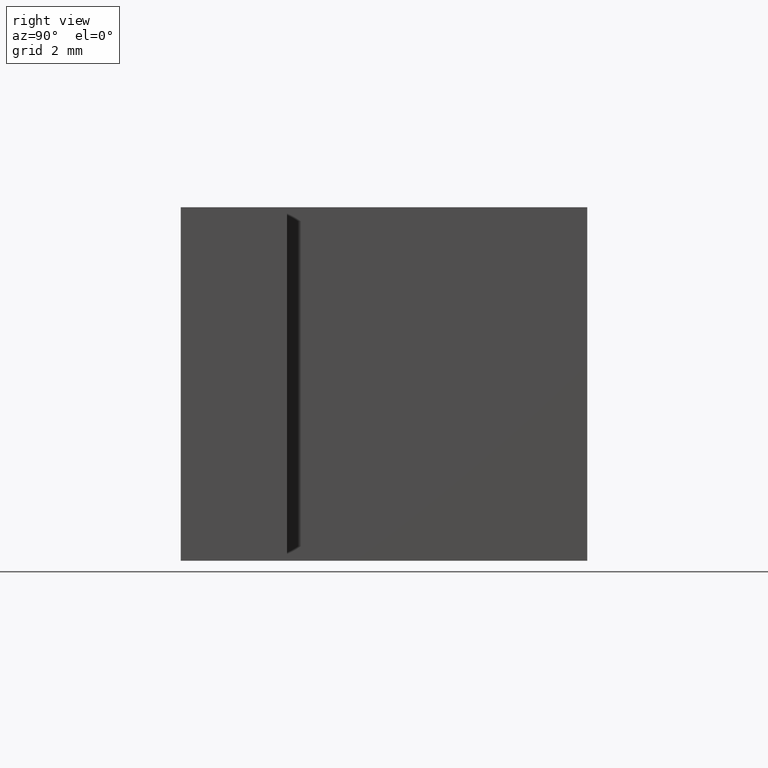
[diagram: clean part render]
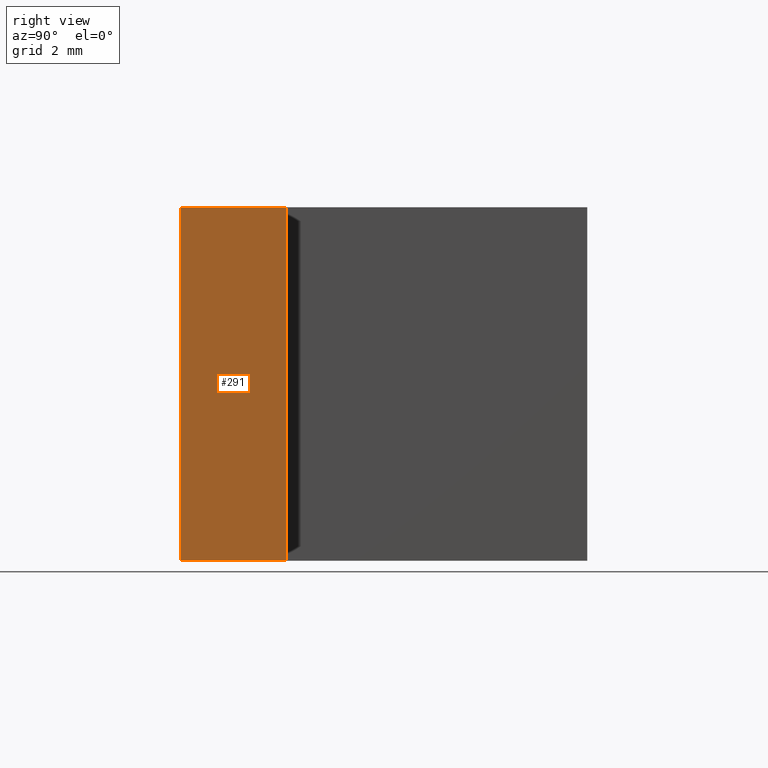
[diagram: same view with one face highlighted and labeled with its STEP entity id]
A machine part, right view. The second image highlights one B-rep face of the part: STEP entity #291.
In plain terms, the highlighted planar face has unit normal (1, 0, 0).
Its self-contained STEP definition (entity closure, byte-faithful):
#28=FACE_OUTER_BOUND('',#43,.T.);
#43=EDGE_LOOP('',(#244,#245,#246,#247));
#48=LINE('',#408,#85);
#81=LINE('',#477,#118);
#82=LINE('',#480,#119);
#83=LINE('',#481,#120);
#85=VECTOR('',#335,10.);
#118=VECTOR('',#394,10.);
#119=VECTOR('',#397,10.);
#120=VECTOR('',#398,10.);
#122=VERTEX_POINT('',#406);
#123=VERTEX_POINT('',#407);
#146=VERTEX_POINT('',#475);
#147=VERTEX_POINT('',#479);
#148=EDGE_CURVE('',#122,#123,#48,.T.);
#183=EDGE_CURVE('',#146,#123,#81,.T.);
#184=EDGE_CURVE('',#146,#147,#82,.T.);
#185=EDGE_CURVE('',#122,#147,#83,.T.);
#244=ORIENTED_EDGE('',*,*,#184,.T.);
#245=ORIENTED_EDGE('',*,*,#185,.F.);
#246=ORIENTED_EDGE('',*,*,#148,.T.);
#247=ORIENTED_EDGE('',*,*,#183,.F.);
#276=PLANE('',#328);
#291=ADVANCED_FACE('',(#28),#276,.T.);
#328=AXIS2_PLACEMENT_3D('',#478,#395,#396);
#335=DIRECTION('',(0.,1.,0.));
#394=DIRECTION('',(0.,0.,-1.));
#395=DIRECTION('center_axis',(1.,0.,0.));
#396=DIRECTION('ref_axis',(0.,0.,-1.));
#397=DIRECTION('',(0.,-1.,0.));
#398=DIRECTION('',(0.,0.,1.));
#406=CARTESIAN_POINT('',(7.,0.,-5.));
#407=CARTESIAN_POINT('',(7.,3.,-5.));
#408=CARTESIAN_POINT('',(7.,3.,-5.));
#475=CARTESIAN_POINT('',(7.,3.,5.));
#477=CARTESIAN_POINT('',(7.,3.,0.));
#478=CARTESIAN_POINT('Origin',(7.,3.,0.));
#479=CARTESIAN_POINT('',(7.,0.,5.));
#480=CARTESIAN_POINT('',(7.,3.,5.));
#481=CARTESIAN_POINT('',(7.,0.,0.));